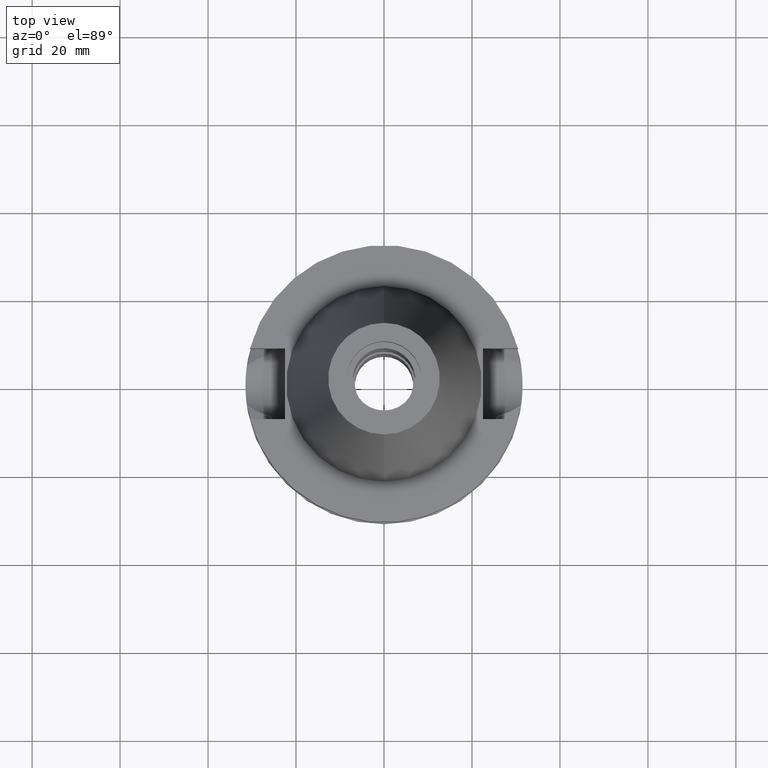
[diagram: clean part render]
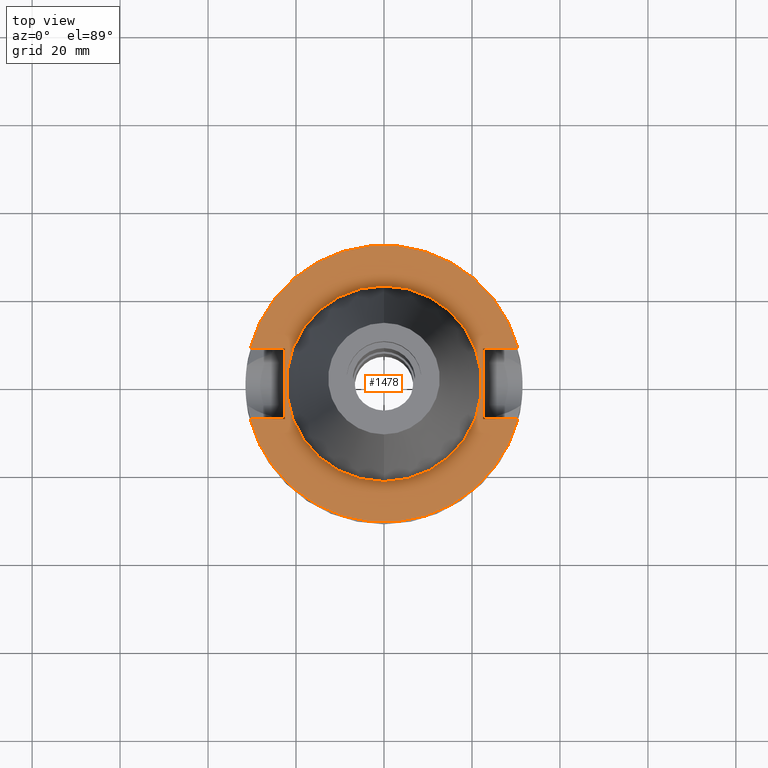
[diagram: same view with one face highlighted and labeled with its STEP entity id]
A machine part, top view. The second image highlights one B-rep face of the part: STEP entity #1478.
In plain terms, the highlighted planar face has unit normal (0, 0, -1).
Its self-contained STEP definition (entity closure, byte-faithful):
#21 = EDGE_CURVE ( 'NONE', #452, #1800, #1240, .T. ) ;
#29 = DIRECTION ( 'NONE',  ( 0.0000000000000000000, -1.000000000000000000, 0.0000000000000000000 ) ) ;
#38 = CARTESIAN_POINT ( 'NONE',  ( 0.0000000000000000000, 0.0000000000000000000, -1.000000000000000000 ) ) ;
#89 = CARTESIAN_POINT ( 'NONE',  ( 30.45402272279000044, -8.050000000000000711, -1.000000000000000000 ) ) ;
#124 = CARTESIAN_POINT ( 'NONE',  ( 22.50000000000000000, 8.050000000000000711, -1.000000000000000000 ) ) ;
#184 = VERTEX_POINT ( 'NONE', #2910 ) ;
#241 = VERTEX_POINT ( 'NONE', #961 ) ;
#253 = AXIS2_PLACEMENT_3D ( 'NONE', #790, #1718, #283 ) ;
#283 = DIRECTION ( 'NONE',  ( 0.0000000000000000000, 1.000000000000000000, 0.0000000000000000000 ) ) ;
#295 = AXIS2_PLACEMENT_3D ( 'NONE', #38, #2823, #1216 ) ;
#359 = ORIENTED_EDGE ( 'NONE', *, *, #1701, .F. ) ;
#383 = EDGE_CURVE ( 'NONE', #1384, #452, #2070, .T. ) ;
#407 = ORIENTED_EDGE ( 'NONE', *, *, #540, .F. ) ;
#423 = CARTESIAN_POINT ( 'NONE',  ( -30.45402272279000044, -8.050000000000000711, -1.000000000000000000 ) ) ;
#452 = VERTEX_POINT ( 'NONE', #89 ) ;
#521 = ORIENTED_EDGE ( 'NONE', *, *, #2832, .T. ) ;
#540 = EDGE_CURVE ( 'NONE', #1278, #184, #568, .T. ) ;
#541 = CARTESIAN_POINT ( 'NONE',  ( 0.0000000000000000000, 0.0000000000000000000, -1.000000000000000000 ) ) ;
#568 = CIRCLE ( 'NONE', #965, 31.50000000000000000 ) ;
#584 = LINE ( 'NONE', #2896, #1359 ) ;
#599 = LINE ( 'NONE', #1517, #993 ) ;
#691 = EDGE_CURVE ( 'NONE', #1800, #1985, #2566, .T. ) ;
#696 = AXIS2_PLACEMENT_3D ( 'NONE', #2649, #706, #29 ) ;
#706 = DIRECTION ( 'NONE',  ( 0.0000000000000000000, 0.0000000000000000000, -1.000000000000000000 ) ) ;
#790 = CARTESIAN_POINT ( 'NONE',  ( 0.0000000000000000000, 0.0000000000000000000, -1.000000000000000000 ) ) ;
#798 = CARTESIAN_POINT ( 'NONE',  ( 22.50000000000000000, 8.050000000000000711, -1.000000000000000000 ) ) ;
#804 = DIRECTION ( 'NONE',  ( 1.000000000000000000, 3.595582526110999949E-14, 0.0000000000000000000 ) ) ;
#936 = VERTEX_POINT ( 'NONE', #798 ) ;
#961 = CARTESIAN_POINT ( 'NONE',  ( 0.0000000000000000000, 22.22500000000000142, -1.000000000000000000 ) ) ;
#965 = AXIS2_PLACEMENT_3D ( 'NONE', #2676, #2503, #1500 ) ;
#993 = VECTOR ( 'NONE', #1935, 1000.000000000000000 ) ;
#1004 = CARTESIAN_POINT ( 'NONE',  ( -22.50000000000000000, -8.050000000000000711, -1.000000000000000000 ) ) ;
#1006 = AXIS2_PLACEMENT_3D ( 'NONE', #541, #1266, #2194 ) ;
#1063 = EDGE_CURVE ( 'NONE', #1985, #2939, #1221, .T. ) ;
#1185 = VECTOR ( 'NONE', #2956, 1000.000000000000000 ) ;
#1216 = DIRECTION ( 'NONE',  ( 0.0000000000000000000, -1.000000000000000000, 0.0000000000000000000 ) ) ;
#1221 = LINE ( 'NONE', #1004, #2019 ) ;
#1240 = CIRCLE ( 'NONE', #1006, 31.50000000000000000 ) ;
#1266 = DIRECTION ( 'NONE',  ( 0.0000000000000000000, 0.0000000000000000000, -1.000000000000000000 ) ) ;
#1278 = VERTEX_POINT ( 'NONE', #2577 ) ;
#1330 = ORIENTED_EDGE ( 'NONE', *, *, #1596, .F. ) ;
#1343 = FACE_BOUND ( 'NONE', #2284, .T. ) ;
#1355 = PLANE ( 'NONE',  #696 ) ;
#1359 = VECTOR ( 'NONE', #2163, 1000.000000000000000 ) ;
#1384 = VERTEX_POINT ( 'NONE', #2762 ) ;
#1444 = CARTESIAN_POINT ( 'NONE',  ( -22.50000000000000000, -8.050000000000000711, -1.000000000000000000 ) ) ;
#1478 = ADVANCED_FACE ( 'NONE', ( #2077, #1343 ), #1355, .F. ) ;
#1500 = DIRECTION ( 'NONE',  ( 0.0000000000000000000, 1.000000000000000000, 0.0000000000000000000 ) ) ;
#1517 = CARTESIAN_POINT ( 'NONE',  ( 22.50000000000000000, 8.050000000000000711, -1.000000000000000000 ) ) ;
#1596 = EDGE_CURVE ( 'NONE', #241, #2451, #2695, .T. ) ;
#1701 = EDGE_CURVE ( 'NONE', #936, #1384, #2417, .T. ) ;
#1718 = DIRECTION ( 'NONE',  ( 0.0000000000000000000, 0.0000000000000000000, 1.000000000000000000 ) ) ;
#1723 = CARTESIAN_POINT ( 'NONE',  ( 0.0000000000000000000, -22.22500000000000142, -1.000000000000000000 ) ) ;
#1791 = ORIENTED_EDGE ( 'NONE', *, *, #2011, .F. ) ;
#1800 = VERTEX_POINT ( 'NONE', #1830 ) ;
#1824 = VECTOR ( 'NONE', #804, 1000.000000000000000 ) ;
#1830 = CARTESIAN_POINT ( 'NONE',  ( -30.45402272279000044, -8.050000000000000711, -1.000000000000000000 ) ) ;
#1935 = DIRECTION ( 'NONE',  ( 1.000000000000000000, -3.506251283225999947E-14, 0.0000000000000000000 ) ) ;
#1985 = VERTEX_POINT ( 'NONE', #1444 ) ;
#2011 = EDGE_CURVE ( 'NONE', #2451, #241, #2534, .T. ) ;
#2019 = VECTOR ( 'NONE', #2161, 1000.000000000000000 ) ;
#2070 = LINE ( 'NONE', #2180, #1824 ) ;
#2077 = FACE_OUTER_BOUND ( 'NONE', #2970, .T. ) ;
#2117 = DIRECTION ( 'NONE',  ( 1.000000000000000000, -3.550916904668000126E-14, 0.0000000000000000000 ) ) ;
#2161 = DIRECTION ( 'NONE',  ( 0.0000000000000000000, 1.000000000000000000, 0.0000000000000000000 ) ) ;
#2163 = DIRECTION ( 'NONE',  ( 1.000000000000000000, 3.550916904668000126E-14, 0.0000000000000000000 ) ) ;
#2179 = CARTESIAN_POINT ( 'NONE',  ( -22.50000000000000000, 8.050000000000000711, -1.000000000000000000 ) ) ;
#2180 = CARTESIAN_POINT ( 'NONE',  ( 22.50000000000000000, -8.050000000000000711, -1.000000000000000000 ) ) ;
#2194 = DIRECTION ( 'NONE',  ( 0.0000000000000000000, -1.000000000000000000, 0.0000000000000000000 ) ) ;
#2284 = EDGE_LOOP ( 'NONE', ( #1330, #1791 ) ) ;
#2370 = ORIENTED_EDGE ( 'NONE', *, *, #383, .F. ) ;
#2417 = LINE ( 'NONE', #124, #1185 ) ;
#2451 = VERTEX_POINT ( 'NONE', #1723 ) ;
#2457 = EDGE_CURVE ( 'NONE', #1278, #2939, #584, .T. ) ;
#2489 = ORIENTED_EDGE ( 'NONE', *, *, #691, .F. ) ;
#2503 = DIRECTION ( 'NONE',  ( 0.0000000000000000000, 0.0000000000000000000, -1.000000000000000000 ) ) ;
#2534 = CIRCLE ( 'NONE', #295, 22.22500000000000142 ) ;
#2566 = LINE ( 'NONE', #423, #2710 ) ;
#2577 = CARTESIAN_POINT ( 'NONE',  ( -30.45402272279000044, 8.050000000000000711, -1.000000000000000000 ) ) ;
#2649 = CARTESIAN_POINT ( 'NONE',  ( 0.0000000000000000000, 0.0000000000000000000, -1.000000000000000000 ) ) ;
#2676 = CARTESIAN_POINT ( 'NONE',  ( 0.0000000000000000000, 0.0000000000000000000, -1.000000000000000000 ) ) ;
#2685 = ORIENTED_EDGE ( 'NONE', *, *, #21, .F. ) ;
#2695 = CIRCLE ( 'NONE', #253, 22.22500000000000142 ) ;
#2710 = VECTOR ( 'NONE', #2117, 1000.000000000000000 ) ;
#2712 = ORIENTED_EDGE ( 'NONE', *, *, #2457, .T. ) ;
#2762 = CARTESIAN_POINT ( 'NONE',  ( 22.50000000000000000, -8.050000000000000711, -1.000000000000000000 ) ) ;
#2794 = ORIENTED_EDGE ( 'NONE', *, *, #1063, .F. ) ;
#2823 = DIRECTION ( 'NONE',  ( 0.0000000000000000000, 0.0000000000000000000, 1.000000000000000000 ) ) ;
#2832 = EDGE_CURVE ( 'NONE', #936, #184, #599, .T. ) ;
#2896 = CARTESIAN_POINT ( 'NONE',  ( -30.45402272279000044, 8.050000000000000711, -1.000000000000000000 ) ) ;
#2910 = CARTESIAN_POINT ( 'NONE',  ( 30.45402272279000044, 8.050000000000000711, -1.000000000000000000 ) ) ;
#2939 = VERTEX_POINT ( 'NONE', #2179 ) ;
#2956 = DIRECTION ( 'NONE',  ( 0.0000000000000000000, -1.000000000000000000, 0.0000000000000000000 ) ) ;
#2970 = EDGE_LOOP ( 'NONE', ( #2489, #2685, #2370, #359, #521, #407, #2712, #2794 ) ) ;